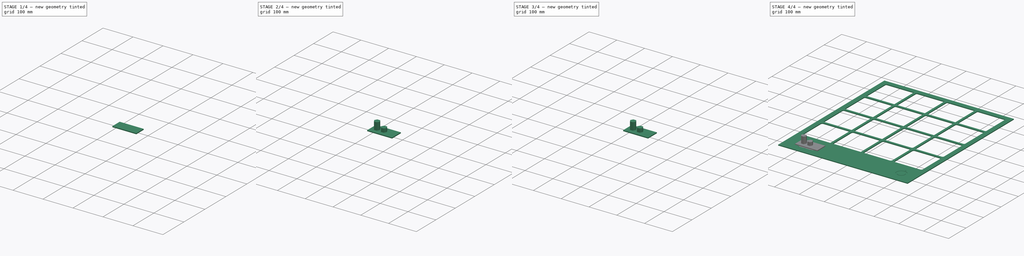
[diagram: build sequence overview — one tinted view per stage of 4, left to right]
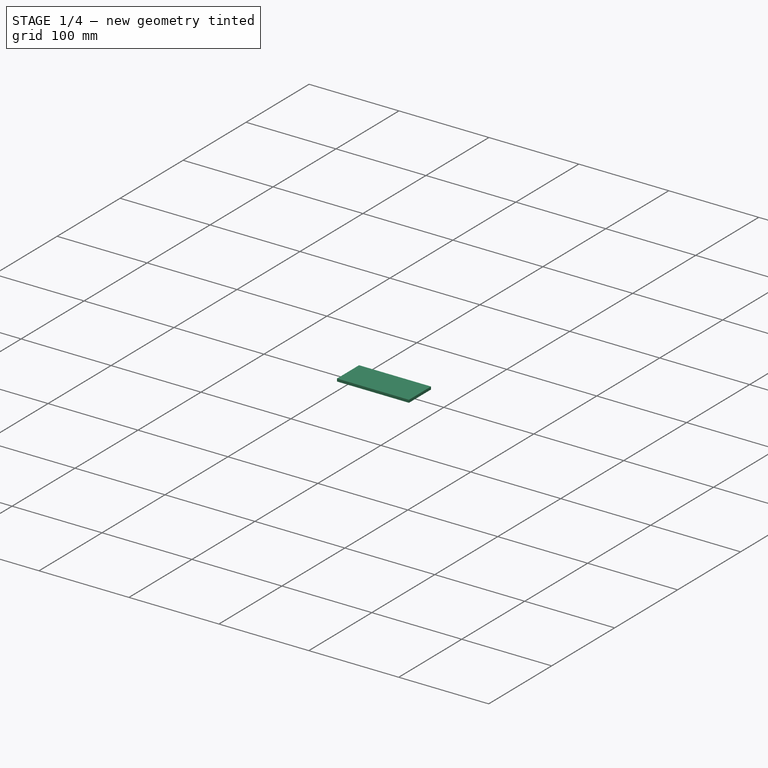
[diagram: stage 1 of 4 — iso view after this stage's code; geometry added in this stage tinted green]
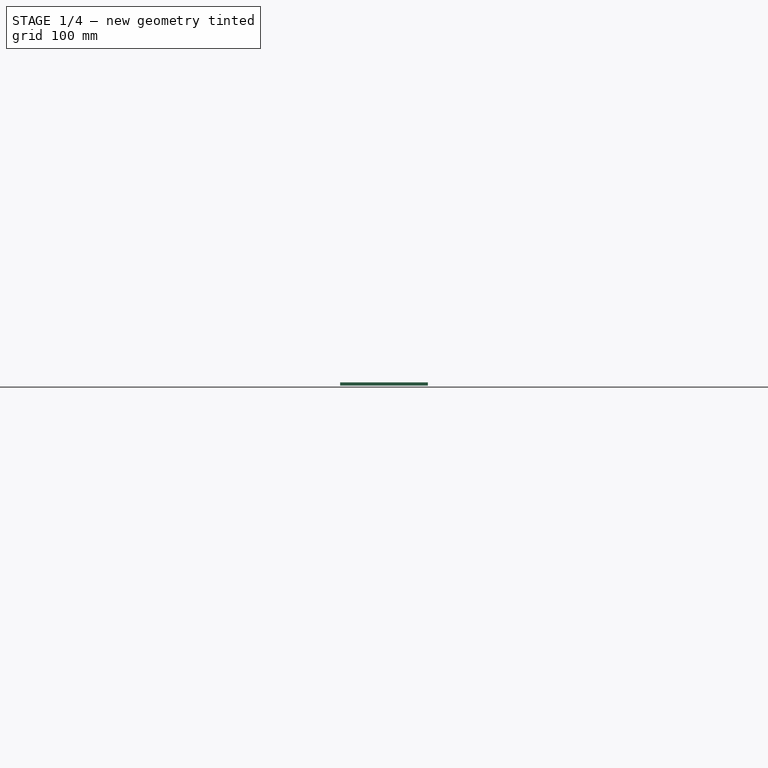
[diagram: stage 1 of 4 — front view after this stage's code; geometry added in this stage tinted green]
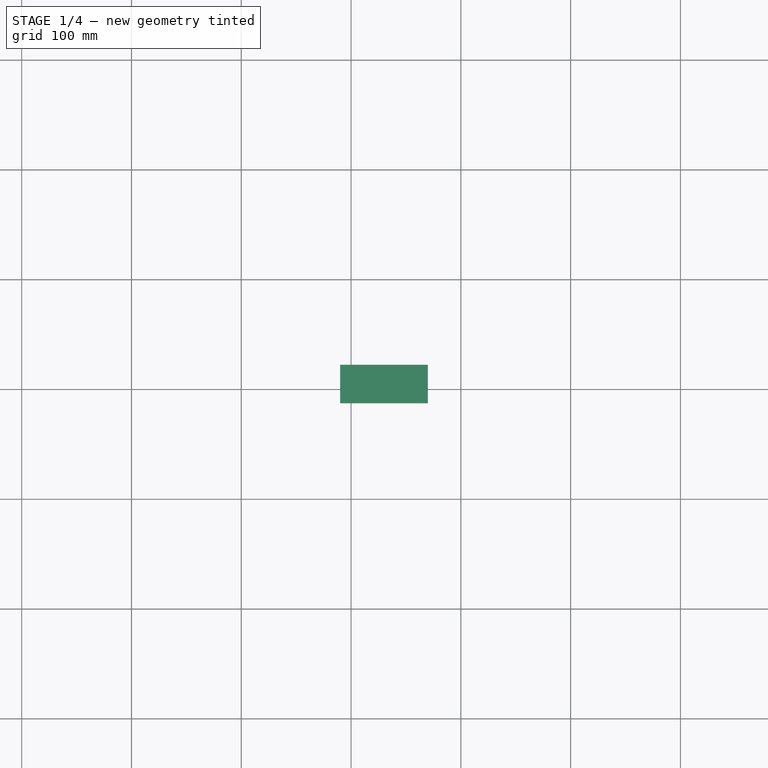
[diagram: stage 1 of 4 — top view after this stage's code; geometry added in this stage tinted green]
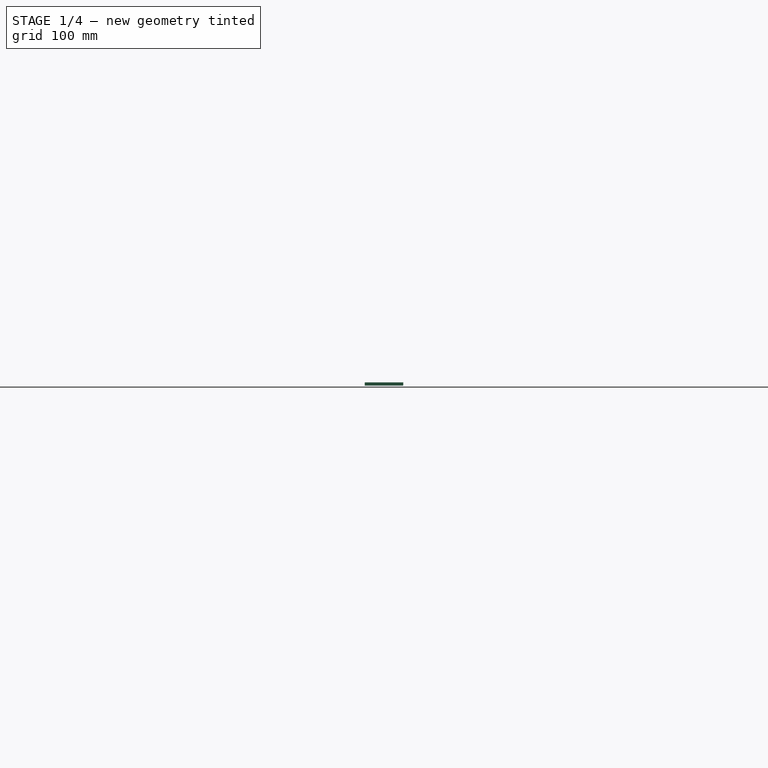
[diagram: stage 1 of 4 — right view after this stage's code; geometry added in this stage tinted green]
FCSTD DOCUMENT  (FreeCAD 0.17R13541 (Git))
Label: legenda 3d
License: All rights reserved
LicenseURL: http://en.wikipedia.org/wiki/All_rights_reserved
objects: Drawing::FeatureViewPart×9, Sketcher::SketchObject×5, PartDesign::FeatureBase×4, PartDesign::Body×4, Part::Extrusion×3, Part::Feature×3, Part::MultiFuse×2, Drawing::FeaturePage×2, Part::FeaturePython×1, PartDesign::Pad×1, Part::Cut×1
note: 25 computed .brp shape members not serialized (recipe doc carries the construction recipe); baked Part::Feature solids carry a one-line shape summary decoded from their .brp

FEATURE [Part::FeaturePython] Clone  label="Body001"  # WARN: FeaturePython — macro-defined, semantics opaque (R4)
  AttacherType = Attacher::AttachEngine3D
  Fuse = false
  Scale = (1,1,1)
FEATURE [PartDesign::FeatureBase] BaseFeature
  BaseFeature = -> Clone
FEATURE [Sketcher::SketchObject] Sketch
  ExternalGeometry = -> [BaseFeature]
  MapMode = 5
  Support = -> [BaseFeature]
  sketch-geometry (4):
    g0: LineSegment StartX=-130 StartY=-277.5 StartZ=0 EndX=-210 EndY=-277.5 EndZ=0
    g1: LineSegment StartX=-210 StartY=-277.5 StartZ=0 EndX=-210 EndY=-312.5 EndZ=0
    g2: LineSegment StartX=-210 StartY=-312.5 StartZ=0 EndX=-130 EndY=-312.5 EndZ=0
    g3: LineSegment StartX=-130 StartY=-312.5 StartZ=0 EndX=-130 EndY=-277.5 EndZ=0
  constraints (10):
    c: Coincident(g0,g1)
    c: Coincident(g1,g2)
    c: Coincident(g2,g3)
    c: Coincident(g3,g0)
    c: Horizontal(g0)
    c: Horizontal(g2)
    c: Vertical(g1)
    c: Vertical(g3)
    c: Coincident(g0,g-3)
    c: Coincident(g1,g-4)
FEATURE [PartDesign::Body] Body
  BaseFeature = -> Clone
  Group = -> [BaseFeature,Sketch]
  Origin = -> Origin
  Tip = -> BaseFeature
FEATURE [Part::Extrusion] Extrude
  Base = -> Sketch
  Dir = (0,0,-1)
  DirMode = 0
  FaceMakerClass = Part::FaceMakerBullseye
  LengthFwd = 3
  LengthRev = 0
  Solid = true
  Symmetric = false
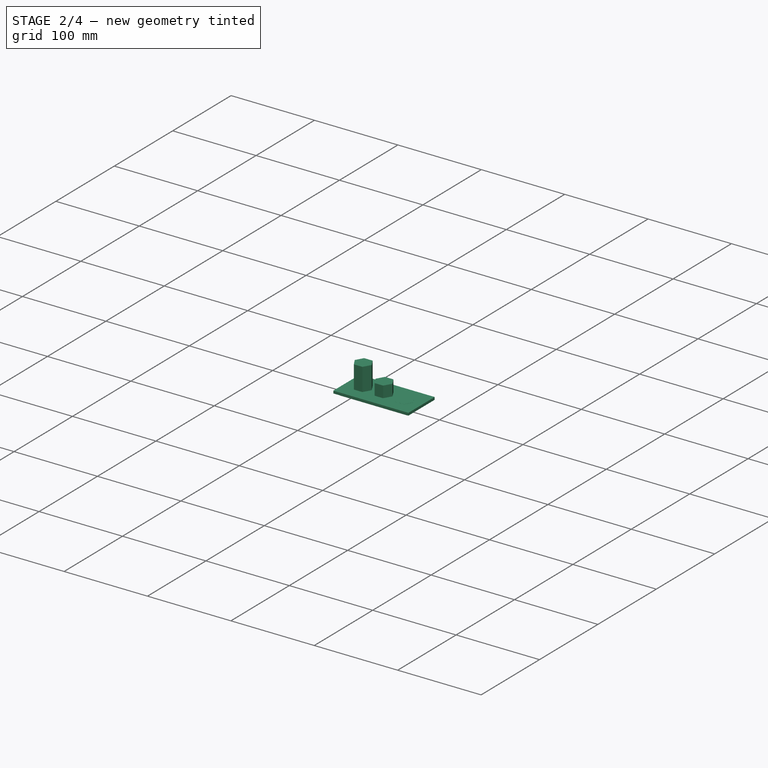
[diagram: stage 2 of 4 — iso view after this stage's code; geometry added in this stage tinted green]
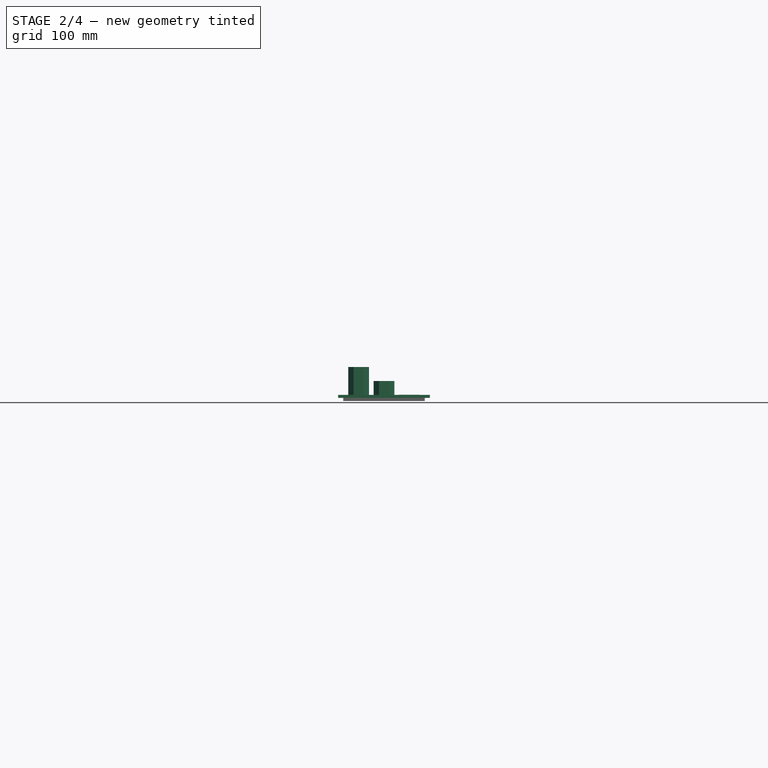
[diagram: stage 2 of 4 — front view after this stage's code; geometry added in this stage tinted green]
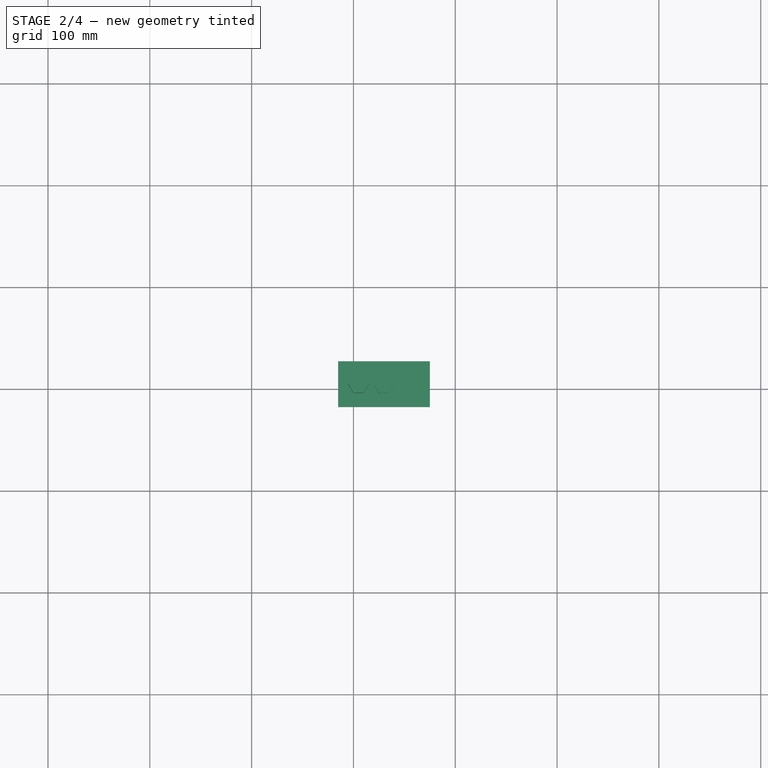
[diagram: stage 2 of 4 — top view after this stage's code; geometry added in this stage tinted green]
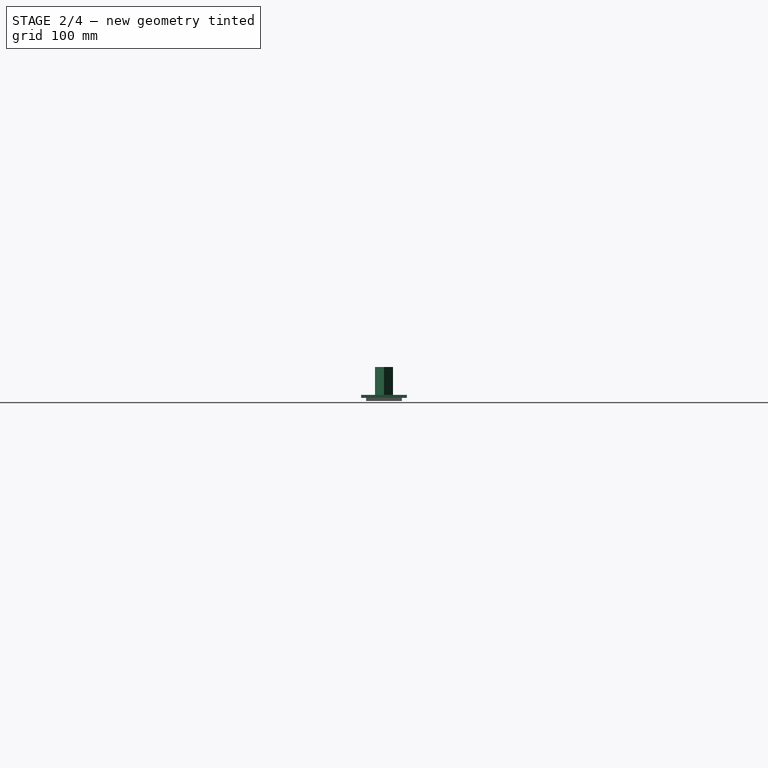
[diagram: stage 2 of 4 — right view after this stage's code; geometry added in this stage tinted green]
FEATURE [PartDesign::FeatureBase] BaseFeature001
  BaseFeature = -> Extrude
FEATURE [Sketcher::SketchObject] Sketch001
  ExternalGeometry = -> [BaseFeature001]
  MapMode = 5
  Support = -> [BaseFeature001]
  sketch-geometry (4):
    g0: LineSegment StartX=-215 StartY=-272.5 StartZ=0 EndX=-125 EndY=-272.5 EndZ=0
    g1: LineSegment StartX=-125 StartY=-272.5 StartZ=0 EndX=-125 EndY=-317.5 EndZ=0
    g2: LineSegment StartX=-125 StartY=-317.5 StartZ=0 EndX=-215 EndY=-317.5 EndZ=0
    g3: LineSegment StartX=-215 StartY=-317.5 StartZ=0 EndX=-215 EndY=-272.5 EndZ=0
  constraints (12):
    c: Coincident(g0,g1)
    c: Coincident(g1,g2)
    c: Coincident(g2,g3)
    c: Coincident(g3,g0)
    c: Horizontal(g0)
    c: Horizontal(g2)
    c: Vertical(g1)
    c: Vertical(g3)
    c: DistanceY(g-3,g0) = 5
    c: DistanceX(g0,g-3) = 5
    c: DistanceX(g-4,g0) = 5
    c: DistanceY(g1,g-4) = 5
FEATURE [PartDesign::Pad] Pad
  BaseFeature = -> BaseFeature001
  Length = 3
  Length2 = 100
  Profile = -> Sketch001
  Type = 0
FEATURE [Part::Feature] buffer_negative_005_buffer_negative_000001001_solid  label="buffer_negative_005_buffer_negative_000002 (Solid)"
  Placement = pos=(-126.218,-250.329,-41.5319) rot=(0,0,-1;1.5708rad)
  shape: bbox 20.37 x 17.64 x 27.31 mm, 14 faces (baked)
FEATURE [Part::Feature] buffer_negative_001_buffer_negative_004001001_solid  label="buffer_negative_001_buffer_negative_004002 (Solid)"
  Placement = pos=(-137.95,-250.329,-41.5319) rot=(0,0,-1;1.5708rad)
  shape: bbox 20.37 x 17.64 x 13.65 mm, 8 faces (baked)
FEATURE [Part::Feature] buffer_negative_000_buffer_negative_003001001_solid  label="buffer_negative_000_buffer_negative_003002 (Solid)"
  Placement = pos=(-145.615,-250.329,-41.5319) rot=(0,0,-1;1.5708rad)
  shape: bbox 20.37 x 17.64 x 0.07 mm, 8 faces (baked)
FEATURE [Sketcher::SketchObject] Sketch002
  ExternalGeometry = -> [Pad]
  MapMode = 5
  Placement = pos=(0,0,3) rot=(0,0,1;0rad)
  Support = -> [Pad]
  sketch-geometry (11):
    g0: LineSegment StartX=-200 StartY=-303.82 StartZ=0 EndX=-189.81 EndY=-303.82 EndZ=0
    g1: LineSegment StartX=-175.095 StartY=-303.82 StartZ=0 EndX=-164.905 EndY=-303.82 EndZ=0
    g2: LineSegment StartX=-150.19 StartY=-303.82 StartZ=0 EndX=-140 EndY=-303.82 EndZ=0
    g3: LineSegment [constr] StartX=-189.81 StartY=-303.82 StartZ=0 EndX=-175.095 EndY=-303.82 EndZ=0
    g4: LineSegment [constr] StartX=-164.905 StartY=-303.82 StartZ=0 EndX=-150.19 EndY=-303.82 EndZ=0
    g5: LineSegment [constr] StartX=-200 StartY=-303.82 StartZ=0 EndX=-200 EndY=-286.18 EndZ=0
    g6: LineSegment [constr] StartX=-140 StartY=-303.82 StartZ=0 EndX=-140 EndY=-286.18 EndZ=0
    g7: LineSegment [constr] StartX=-215 StartY=-272.5 StartZ=0 EndX=-200 EndY=-286.18 EndZ=0
    g8: LineSegment [constr] StartX=-215 StartY=-317.5 StartZ=0 EndX=-200 EndY=-303.82 EndZ=0
    g9: LineSegment [constr] StartX=-125 StartY=-272.5 StartZ=0 EndX=-140 EndY=-286.18 EndZ=0
    g10: LineSegment [constr] StartX=-140 StartY=-303.82 StartZ=0 EndX=-125 EndY=-317.5 EndZ=0
  constraints (31):
    c: Horizontal(g0)
    c: Horizontal(g1)
    c: Horizontal(g2)
    c: Equal(g0,g1)
    c: Equal(g1,g2)
    c: DistanceX(g0,g0) = 10.19
    c: Coincident(g3,g0)
    c: Coincident(g3,g1)
    c: Horizontal(g3)
    c: Coincident(g4,g1)
    c: Coincident(g4,g2)
    c: Horizontal(g4)
    c: Equal(g3,g4)
    c: Coincident(g5,g0)
    c: Vertical(g5)
    c: DistanceY(g5,g5) = 17.64
    c: Coincident(g6,g2)
    c: Vertical(g6)
    c: Equal(g5,g6)
    c: Coincident(g-3,g7)
    c: Coincident(g7,g5)
    c: Coincident(g-4,g8)
    c: Coincident(g8,g0)
    c: Coincident(g-3,g9)
    c: Coincident(g9,g6)
    c: Coincident(g2,g10)
    c: Coincident(g10,g-4)
    c: DistanceX(g0,g2) = 60
    c: Equal(g7,g8)
    c: Equal(g8,g10)
    c: Equal(g10,g9)
FEATURE [PartDesign::Body] Body001  label="Body002"
  BaseFeature = -> Extrude
  Group = -> [BaseFeature001,Sketch001,Pad,Sketch002]
  Origin = -> Origin001
  Tip = -> Pad
FEATURE [Part::MultiFuse] Fusion
  Shapes = -> [Body001,buffer_negative_005_buffer_negative_000001001_solid,buffer_negative_001_buffer_negative_004001001_solid,buffer_negative_000_buffer_negative_003001001_solid]
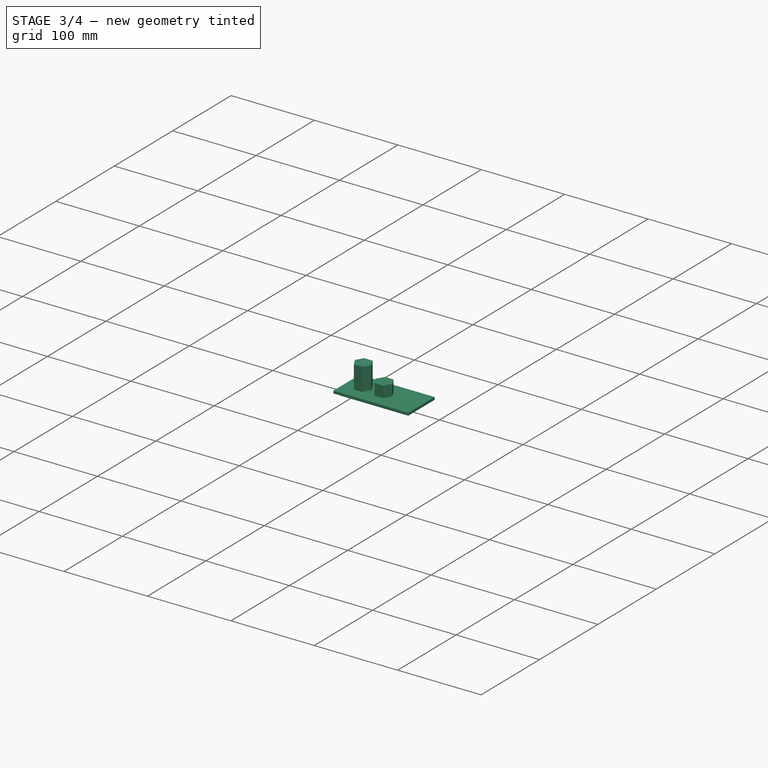
[diagram: stage 3 of 4 — iso view after this stage's code; geometry added in this stage tinted green]
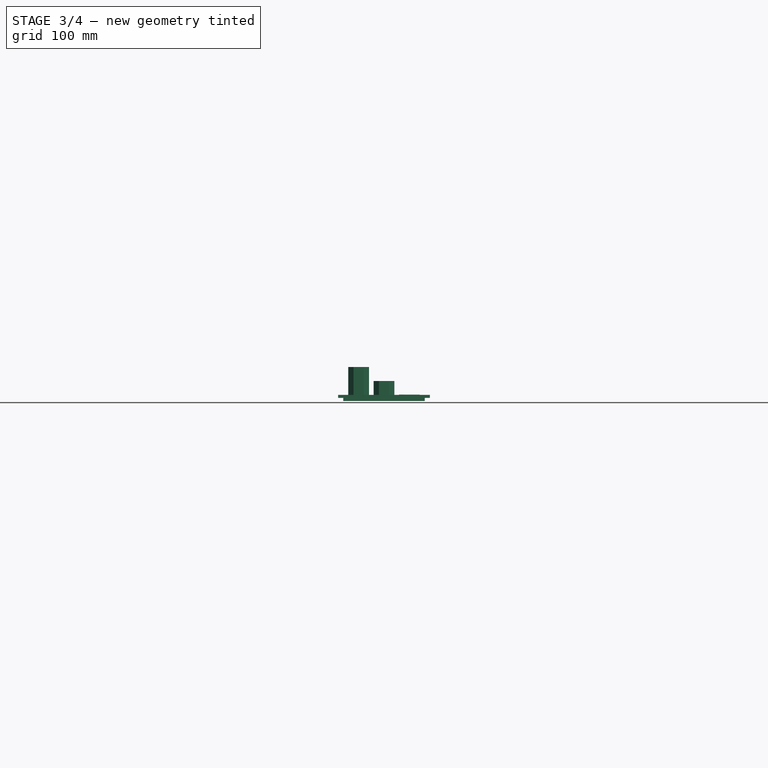
[diagram: stage 3 of 4 — front view after this stage's code; geometry added in this stage tinted green]
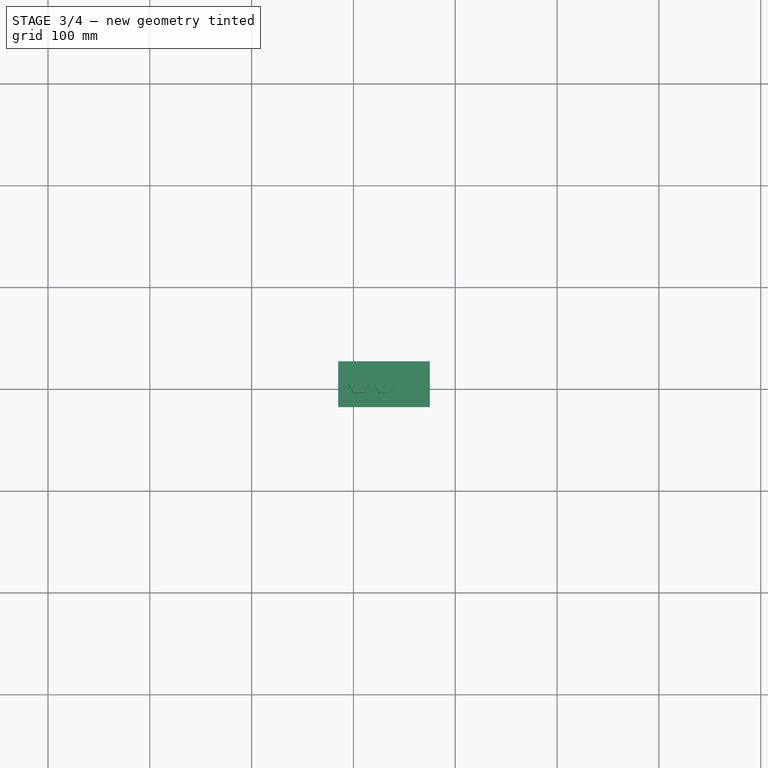
[diagram: stage 3 of 4 — top view after this stage's code; geometry added in this stage tinted green]
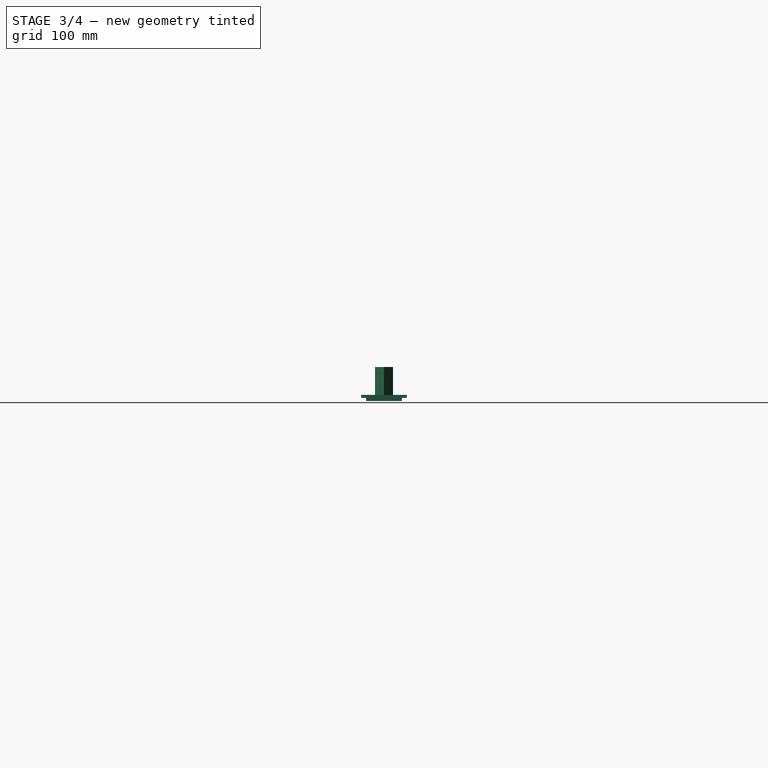
[diagram: stage 3 of 4 — right view after this stage's code; geometry added in this stage tinted green]
FEATURE [Drawing::FeatureViewPart] Ortho  label="Ortho_0_0"
  Direction = (1,0,0)
  HiddenWidth = 0.15
  LineWidth = 0.35
  Rotation = -90
  ShowHiddenLines = false
  ShowSmoothLines = false
  Source = -> Cut
  Tolerance = 0.05
  ViewResult = <g id="Ortho_0_0"\n   transform="rotate(-90,465.5,964) translate(465.5,964) scale(1,1)"\n  >\n<g   fill="none"\n   stroke="rgb(0, 0, 0)"\n   stroke-linecap="butt"\n   stroke-linejoin="miter"\n   stroke-width="0.350000"\n   transform="scale(1,-1)"\n  >\n<path id= "1" d=" M 0 -260 L 0 350 " />\n<path id= "2" d=" M 0 -260 L -3 -260 " />\n<path id= "3" d=" M 0 350 L -3 350 " />\n<path id= "4" d=" M -3 -260 L -3 350 " />\n</g>\n</g>
  Visible = false
  X = 465.5
  Y = 964
FEATURE [Drawing::FeatureViewPart] Ortho001  label="Ortho_0_1"
  Direction = (0,0,1)
  HiddenWidth = 0.15
  LineWidth = 0.35
  Rotation = 90
  ShowHiddenLines = false
  ShowSmoothLines = false
  Source = -> Cut
  Tolerance = 0.05
  ViewResult = <blob: 6287 chars omitted>
  Visible = false
  X = 465.5
  Y = 482
FEATURE [Drawing::FeaturePage] Page001
  EditableTexts = AUTHOR NAME | DRAWING TITLE | FreeCAD DRAWING | A0 | X / Y | SCALE | PN | DN | DD/MM/YYYY | REV A
  Template = <path>
FEATURE [Drawing::FeatureViewPart] Ortho002  label="Ortho_0_002"
  Direction = (1,0,0)
  HiddenWidth = 0.15
  LineWidth = 0.35
  Rotation = -90
  ShowHiddenLines = false
  ShowSmoothLines = false
  Source = -> Fusion
  Tolerance = 0.05
  ViewResult = <g id="Ortho_0_002"\n   transform="rotate(-90,715.5,879.667) translate(715.5,879.667) scale(1,1)"\n  >\n<g   fill="none"\n   stroke="rgb(0, 0, 0)"\n   stroke-linecap="butt"\n   stroke-linejoin="miter"\n   stroke-width="0.350000"\n   transform="scale(1,-1)"\n  >\n<path id= "1" d=" M 0 272.5 L 3 272.5 " />\n<path id= "2" d=" M 0 317.5 L 3 317.5 " />\n<path id= "3" d=" M 0 272.5 L 0 317.5 " />\n<path id= "4" d=" M 3 272.5 L 3 317.5 " />\n<path id= "5" d=" M 0 312.5 L -3 312.5 " />\n<path id= "6" d=" M 0 277.5 L -3 277.5 " />\n<path id= "7" d=" M -3 312.5 L -3 277.5 " />\n<path id= "8" d=" M 16.653 286.176 L 30.306 286.176 " />\n<path id= "9" d=" M 30.306 294.998 L 30.306 286.176 " />\n<path id= "10" d=" M 16.653 294.998 L 30.306 294.998 " />\n<path id= "11" d=" M 30.306 303.82 L 30.306 294.998 " />\n<path id= "12" d=" M 16.653 303.82 L 30.306 303.82 " />\n<path id= "13" d=" M 3 286.176 L 3 286.176 " />\n<path id= "14" d=" M 3.07 286.176 L 16.653 286.176 " />\n<path id= "15" d=" M 16.653 294.998 L 16.653 286.176 " />\n<path id= "16" d=" M 3 294.998 L 3 294.998 " />\n<path id= "17" d=" M 3.07 294.998 L 16.653 294.998 " />\n<path id= "18" d=" M 16.653 303.82 L 16.653 294.998 " />\n<path id= "19" d=" M 3 303.82 L 3 303.82 " />\n<path id= "20" d=" M 3.07 303.82 L 16.653 303.82 " />\n<path id= "21" d=" M 3.07 294.998 L 3.07 286.176 " />\n<path id= "22" d=" M 3.07 303.82 L 3.07 294.998 " />\n<path id= "23" d=" M 3 303.82 L 3.07 303.82 " />\n<path id= "24" d=" M 3 294.998 L 3 286.176 " />\n<path id= "25" d=" M 3 303.82 L 3 294.998 " />\n<path id= "26" d=" M 3 294.998 L 3.07 294.998 " />\n<path id= "27" d=" M 3 286.176 L 3.07 286.176 " />\n</g>\n</g>
  Visible = false
  X = 715.5
  Y = 879.667
FEATURE [Drawing::FeatureViewPart] Ortho003  label="Ortho_0_003"
  Direction = (0,0,1)
  HiddenWidth = 0.15
  LineWidth = 0.35
  Rotation = 90
  ShowHiddenLines = false
  ShowSmoothLines = false
  Source = -> Fusion
  Tolerance = 0.05
  ViewResult = <g id="Ortho_0_003"\n   transform="rotate(90,715.5,578.027) translate(715.5,578.027) scale(1,1)"\n  >\n<g   fill="none"\n   stroke="rgb(0, 0, 0)"\n   stroke-linecap="butt"\n   stroke-linejoin="miter"\n   stroke-width="0.350000"\n   transform="scale(1,-1)"\n  >\n<path id= "1" d=" M -215 -272.5 L -125 -272.5 " />\n<path id= "2" d=" M -215 -317.5 L -215 -272.5 " />\n<path id= "3" d=" M -125 -272.5 L -125 -317.5 " />\n<path id= "4" d=" M -125 -317.5 L -215 -317.5 " />\n<path id= "5" d=" M -201.015 -286.176 L -189.81 -286.176 " />\n<path id= "6" d=" M -199.997 -286.176 L -205.09 -294.998 " />\n<path id= "7" d=" M -189.81 -286.176 L -199.997 -286.176 " />\n<path id= "8" d=" M -184.717 -294.998 L -189.81 -286.176 " />\n<path id= "9" d=" M -189.81 -303.82 L -184.717 -294.998 " />\n<path id= "10" d=" M -199.997 -303.82 L -189.81 -303.82 " />\n<path id= "11" d=" M -205.09 -294.998 L -199.997 -303.82 " />\n<path id= "12" d=" M -175.092 -286.176 L -180.185 -294.998 " />\n<path id= "13" d=" M -164.905 -286.176 L -175.092 -286.176 " />\n<path id= "14" d=" M -159.812 -294.998 L -164.905 -286.176 " />\n<path id= "15" d=" M -164.905 -303.82 L -159.812 -294.998 " />\n<path id= "16" d=" M -175.092 -303.82 L -164.905 -303.82 " />\n<path id= "17" d=" M -180.185 -294.998 L -175.092 -303.82 " />\n<path id= "18" d=" M -205.09 -294.998 L -184.717 -294.998 " />\n<path id= "19" d=" M -199.997 -286.176 L -184.717 -294.998 " />\n<path id= "20" d=" M -199.997 -303.82 L -184.717 -294.998 " />\n<path id= "21" d=" M -134.907 -294.998 L -140 -286.176 " />\n<path id= "22" d=" M -140 -286.176 L -150.187 -286.176 " />\n<path id= "23" d=" M -150.187 -286.176 L -155.28 -294.998 " />\n<path id= "24" d=" M -155.28 -294.998 L -150.187 -303.82 " />\n<path id= "25" d=" M -150.187 -303.82 L -140 -303.82 " />\n<path id= "26" d=" M -140 -303.82 L -134.907 -294.998 " />\n</g>\n</g>
  Visible = false
  X = 715.5
  Y = 578.027
FEATURE [Drawing::FeatureViewPart] Ortho004  label="Ortho_1_1"
  Direction = (0.57735,0.57735,0.57735)
  HiddenWidth = 0.15
  LineWidth = 0.35
  Rotation = 120
  ShowHiddenLines = false
  ShowSmoothLines = false
  Source = -> Fusion
  Tolerance = 0.05
  ViewResult = <blob: 3503 chars omitted>
  Visible = false
  X = 752.888
  Y = 609.01
FEATURE [Drawing::FeatureViewPart] Ortho005  label="Ortho_-1_1"
  Direction = (0.57735,-0.57735,0.57735)
  HiddenWidth = 0.15
  LineWidth = 0.35
  Rotation = 60
  ShowHiddenLines = false
  ShowSmoothLines = false
  Source = -> Fusion
  Tolerance = 0.05
  ViewResult = <blob: 3502 chars omitted>
  Visible = false
  X = 505.305
  Y = 368.144
FEATURE [Drawing::FeatureViewPart] Ortho006  label="Ortho_0_004"
  Direction = (1,0,0)
  HiddenWidth = 0.15
  LineWidth = 0.35
  Rotation = -90
  ShowHiddenLines = false
  ShowSmoothLines = false
  Source = -> Body002
  Tolerance = 0.05
  ViewResult = <g id="Ortho_0_004"\n   transform="rotate(-90,715.5,336.639) translate(715.5,336.639) scale(1,1)"\n  >\n<g   fill="none"\n   stroke="rgb(0, 0, 0)"\n   stroke-linecap="butt"\n   stroke-linejoin="miter"\n   stroke-width="0.350000"\n   transform="scale(1,-1)"\n  >\n<path id= "1" d=" M 0 272.5 L 3 272.5 " />\n<path id= "2" d=" M 0 317.5 L 3 317.5 " />\n<path id= "3" d=" M 0 272.5 L 0 317.5 " />\n<path id= "4" d=" M 3 272.5 L 3 317.5 " />\n<path id= "5" d=" M 0 312.5 L -3 312.5 " />\n<path id= "6" d=" M 0 277.5 L -3 277.5 " />\n<path id= "7" d=" M -3 312.5 L -3 277.5 " />\n<path id= "8" d=" M 16.653 286.176 L 30.306 286.176 " />\n<path id= "9" d=" M 30.306 294.998 L 30.306 286.176 " />\n<path id= "10" d=" M 16.653 294.998 L 30.306 294.998 " />\n<path id= "11" d=" M 30.306 303.82 L 30.306 294.998 " />\n<path id= "12" d=" M 16.653 303.82 L 30.306 303.82 " />\n<path id= "13" d=" M 3 286.176 L 3 286.176 " />\n<path id= "14" d=" M 3.07 286.176 L 16.653 286.176 " />\n<path id= "15" d=" M 16.653 294.998 L 16.653 286.176 " />\n<path id= "16" d=" M 3 294.998 L 3 294.998 " />\n<path id= "17" d=" M 3.07 294.998 L 16.653 294.998 " />\n<path id= "18" d=" M 16.653 303.82 L 16.653 294.998 " />\n<path id= "19" d=" M 3 303.82 L 3 303.82 " />\n<path id= "20" d=" M 3.07 303.82 L 16.653 303.82 " />\n<path id= "21" d=" M 3.07 294.998 L 3.07 286.176 " />\n<path id= "22" d=" M 3.07 303.82 L 3.07 294.998 " />\n<path id= "23" d=" M 3 303.82 L 3.07 303.82 " />\n<path id= "24" d=" M 3 294.998 L 3 286.176 " />\n<path id= "25" d=" M 3 303.82 L 3 294.998 " />\n<path id= "26" d=" M 3 294.998 L 3.07 294.998 " />\n<path id= "27" d=" M 3 286.176 L 3.07 286.176 " />\n</g>\n</g>
  Visible = false
  X = 715.5
  Y = 336.639
FEATURE [Drawing::FeatureViewPart] Ortho007  label="Ortho_-1_-1"
  Direction = (0.57735,-0.57735,-0.57735)
  HiddenWidth = 0.15
  LineWidth = 0.35
  Rotation = 120
  ShowHiddenLines = false
  ShowSmoothLines = false
  Source = -> Body002
  Tolerance = 0.05
  ViewResult = <g id="Ortho_-1_-1"\n   transform="rotate(120,505.305,843.151) translate(505.305,843.151) scale(1,1)"\n  >\n<g   fill="none"\n   stroke="rgb(0, 0, 0)"\n   stroke-linecap="butt"\n   stroke-linejoin="miter"\n   stroke-width="0.350000"\n   transform="scale(1,-1)"\n  >\n<path id= "1" d=" M 88.3883 -273.526 L 86.267 -274.751 " />\n<path id= "2" d=" M 152.028 -310.269 L 88.3883 -273.526 " />\n<path id= "3" d=" M 152.028 -347.011 L 149.907 -348.236 " />\n<path id= "4" d=" M 152.028 -347.011 L 152.028 -310.269 " />\n<path id= "5" d=" M 88.3883 -310.269 L 86.267 -311.493 " />\n<path id= "6" d=" M 88.3883 -273.526 L 88.3883 -310.269 " />\n<path id= "7" d=" M 86.267 -274.751 L 86.267 -311.493 " />\n<path id= "8" d=" M 88.3883 -310.269 L 152.028 -347.011 " />\n<path id= "9" d=" M 91.9239 -308.227 L 91.9239 -279.65 " />\n<path id= "10" d=" M 148.492 -340.887 L 91.9239 -308.227 " />\n<path id= "11" d=" M 86.267 -311.493 L 149.907 -348.236 " />\n<path id= "12" d=" M 91.9239 -308.227 L 94.0452 -307.003 " />\n<path id= "13" d=" M 91.9239 -279.65 L 94.0452 -278.425 " />\n<path id= "14" d=" M 94.0452 -307.003 L 94.0452 -278.425 " />\n<path id= "15" d=" M 148.492 -340.887 L 150.614 -339.663 " />\n<path id= "16" d=" M 150.614 -339.663 L 94.0452 -307.003 " />\n<path id= "17" d=" M 150.614 -311.085 L 150.614 -339.663 " />\n<path id= "18" d=" M 94.0452 -278.425 L 150.614 -311.085 " />\n<path id= "19" d=" M 109.185 -328.647 L 111.146 -325.857 " />\n<path id= "20" d=" M 112.582 -326.686 L 109.185 -328.647 " />\n<path id= "21" d=" M 112.786 -337.93 L 109.185 -328.647 " />\n<path id= "22" d=" M 122.421 -332.367 L 112.786 -337.93 " />\n<path id= "23" d=" M 129.625 -336.526 L 119.99 -342.089 " />\n<path id= "24" d=" M 119.99 -342.089 L 112.786 -337.93 " />\n</g>\n</g>
  Visible = false
  X = 505.305
  Y = 843.151
FEATURE [Drawing::FeatureViewPart] Ortho008  label="Ortho_1_-1"
  Direction = (0.57735,0.57735,-0.57735)
  HiddenWidth = 0.15
  LineWidth = 0.35
  Rotation = 60
  ShowHiddenLines = false
  ShowSmoothLines = false
  Source = -> Body002
  Tolerance = 0.05
  ViewResult = <g id="Ortho_1_-1"\n   transform="rotate(60,752.888,602.285) translate(752.888,602.285) scale(1,1)"\n  >\n<g   fill="none"\n   stroke="rgb(0, 0, 0)"\n   stroke-linecap="butt"\n   stroke-linejoin="miter"\n   stroke-width="0.350000"\n   transform="scale(1,-1)"\n  >\n<path id= "1" d=" M 152.028 -134.722 L 149.907 -133.497 " />\n<path id= "2" d=" M 88.3883 -171.464 L 86.267 -170.24 " />\n<path id= "3" d=" M 152.028 -134.722 L 88.3883 -171.464 " />\n<path id= "4" d=" M 149.907 -133.497 L 86.267 -170.24 " />\n<path id= "5" d=" M 152.028 -171.464 L 152.028 -134.722 " />\n<path id= "6" d=" M 88.3883 -208.207 L 86.267 -206.982 " />\n<path id= "7" d=" M 88.3883 -171.464 L 88.3883 -208.207 " />\n<path id= "8" d=" M 86.267 -170.24 L 86.267 -206.982 " />\n<path id= "9" d=" M 88.3883 -208.207 L 152.028 -171.464 " />\n<path id= "10" d=" M 91.9239 -202.083 L 91.9239 -173.506 " />\n<path id= "11" d=" M 91.9239 -173.506 L 148.492 -140.846 " />\n<path id= "12" d=" M 91.9239 -202.083 L 94.0452 -203.308 " />\n<path id= "13" d=" M 91.9239 -173.506 L 94.0452 -174.73 " />\n<path id= "14" d=" M 94.0452 -203.308 L 94.0452 -174.73 " />\n<path id= "15" d=" M 150.614 -170.648 L 94.0452 -203.308 " />\n<path id= "16" d=" M 148.492 -140.846 L 150.614 -142.07 " />\n<path id= "17" d=" M 150.614 -142.07 L 150.614 -170.648 " />\n<path id= "18" d=" M 94.0452 -174.73 L 150.614 -142.07 " />\n<path id= "19" d=" M 129.627 -145.205 L 119.99 -139.641 " />\n<path id= "20" d=" M 122.424 -149.364 L 112.786 -143.8 " />\n<path id= "21" d=" M 112.786 -143.8 L 119.99 -139.641 " />\n<path id= "22" d=" M 109.185 -153.082 L 112.786 -143.8 " />\n<path id= "23" d=" M 112.585 -155.045 L 109.185 -153.082 " />\n<path id= "24" d=" M 111.148 -155.875 L 109.185 -153.082 " />\n</g>\n</g>
  Visible = false
  X = 752.888
  Y = 602.285
FEATURE [Drawing::FeaturePage] Page
  Group = -> [Ortho,Ortho001,Ortho002,Ortho003,Ortho004,Ortho005,Ortho006,Ortho007,Ortho008]
  Template = <path>
FEATURE [PartDesign::FeatureBase] BaseFeature003
  BaseFeature = -> Fusion
FEATURE [Sketcher::SketchObject] Sketch004
  ExternalGeometry = -> [BaseFeature003]
  MapMode = 5
  Placement = pos=(0,0,3.07) rot=(0,0,1;0rad)
  Support = -> [BaseFeature003]
  sketch-geometry (7):
    g0: LineSegment StartX=-140 StartY=-286.176 StartZ=0 EndX=-150.187 EndY=-286.176 EndZ=0
    g1: LineSegment StartX=-150.187 StartY=-286.176 StartZ=0 EndX=-155.28 EndY=-294.998 EndZ=0
    g2: LineSegment StartX=-155.28 StartY=-294.998 StartZ=0 EndX=-150.187 EndY=-303.82 EndZ=0
    g3: LineSegment StartX=-150.187 StartY=-303.82 StartZ=0 EndX=-140 EndY=-303.82 EndZ=0
    g4: LineSegment StartX=-140 StartY=-303.82 StartZ=0 EndX=-134.907 EndY=-294.998 EndZ=0
    g5: LineSegment StartX=-134.907 StartY=-294.998 StartZ=0 EndX=-140 EndY=-286.176 EndZ=0
    g6: Circle [constr] CenterX=-145.093 CenterY=-294.998 CenterZ=0 NormalX=0 NormalY=0 NormalZ=1 AngleXU=0 Radius=10.1868
  constraints (15):
    c: Coincident(g0,g1)
    c: Coincident(g1,g2)
    c: Coincident(g2,g3)
    c: Coincident(g3,g4)
    c: Coincident(g4,g5)
    c: Coincident(g5,g0)
    c: Equal(g0, g1-g5) x5
    c: PointOnObject(g0,g6)
    c: PointOnObject(g1,g6)
    c: PointOnObject(g2,g6)
    c: PointOnObject(g3,g6)
    c: PointOnObject(g4,g6)
    c: PointOnObject(g5,g6)
    c: Coincident(g-3,g0)
    c: Coincident(g-4,g2)
FEATURE [PartDesign::Body] Body003  label="Body004"
  BaseFeature = -> Fusion
  Group = -> [BaseFeature003,Sketch004]
  Origin = -> Origin003
  Tip = -> BaseFeature003
FEATURE [Part::Extrusion] Extrude002
  Base = -> Sketch004
  Dir = (0,0,1)
  DirMode = 2
  FaceMakerClass = Part::FaceMakerBullseye
  LengthFwd = 0.2
  LengthRev = 0
  Placement = pos=(0,0,-0.1) rot=(0,0,1;0rad)
  Solid = true
  Symmetric = false
FEATURE [Part::MultiFuse] Fusion001
  Shapes = -> [Body003,Extrude002]
note: 2 file-system paths scrubbed to <path> (originals preserved in the JSON sidecar)
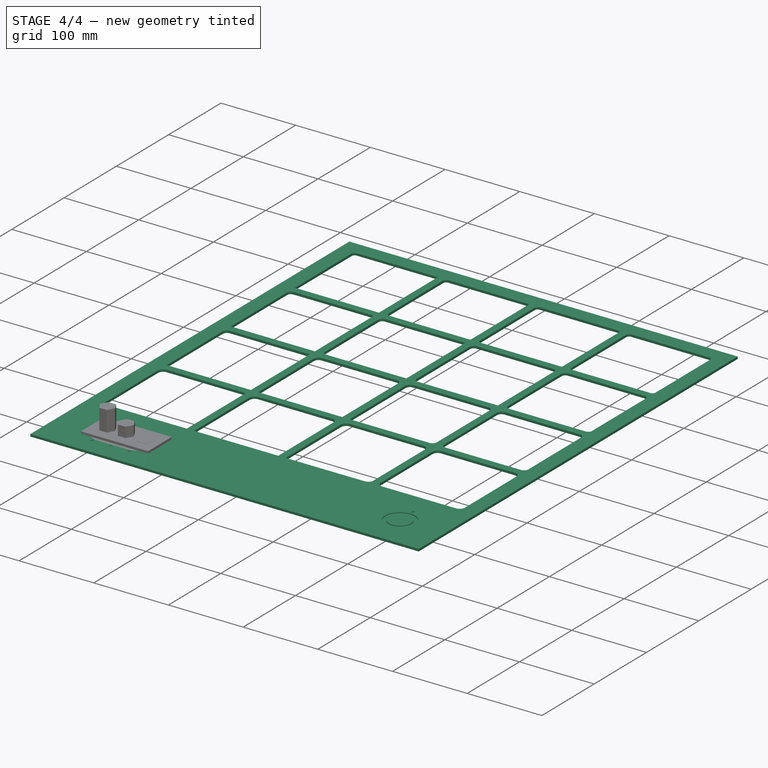
[diagram: stage 4 of 4 — iso view after this stage's code; geometry added in this stage tinted green]
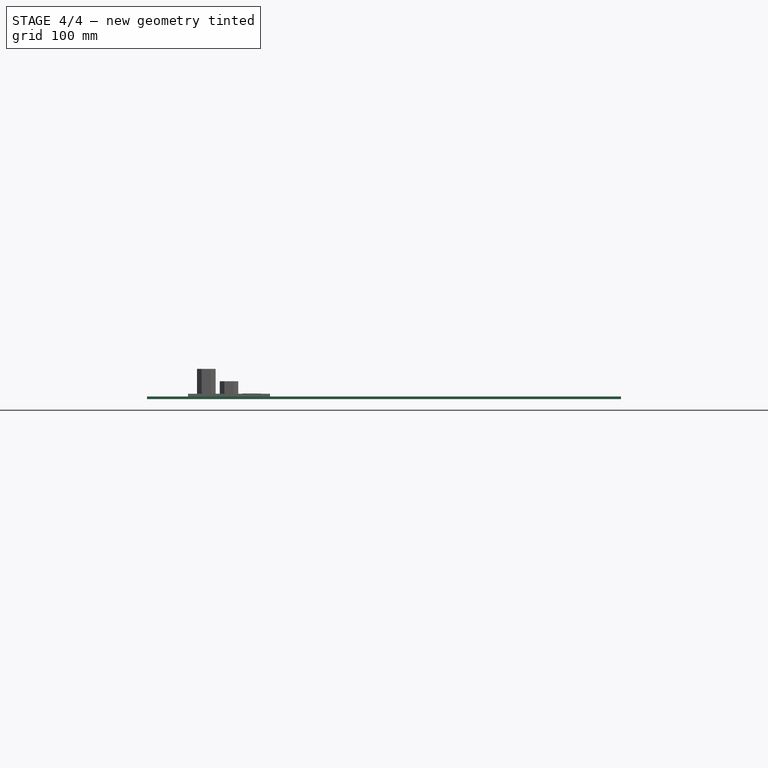
[diagram: stage 4 of 4 — front view after this stage's code; geometry added in this stage tinted green]
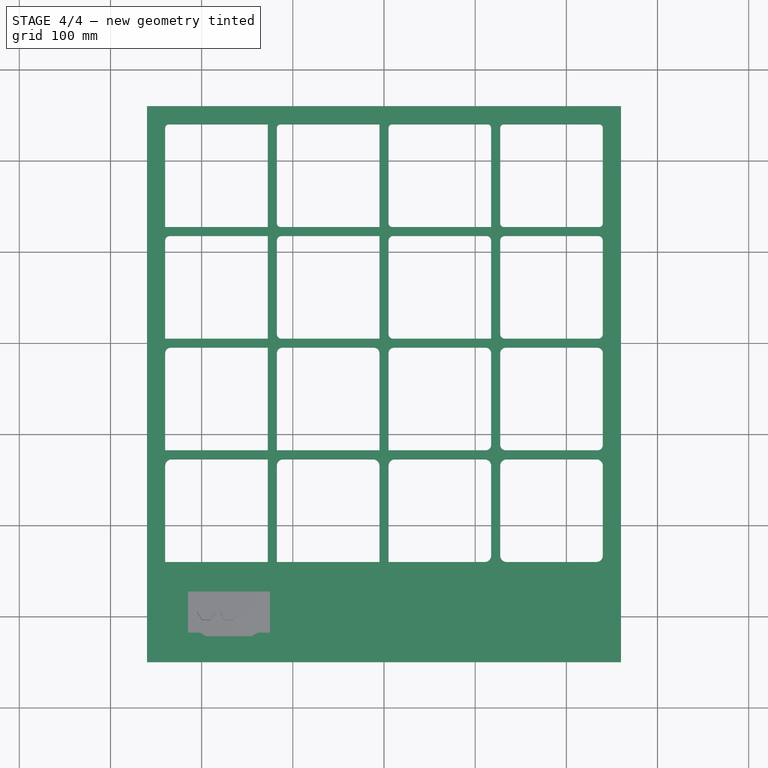
[diagram: stage 4 of 4 — top view after this stage's code; geometry added in this stage tinted green]
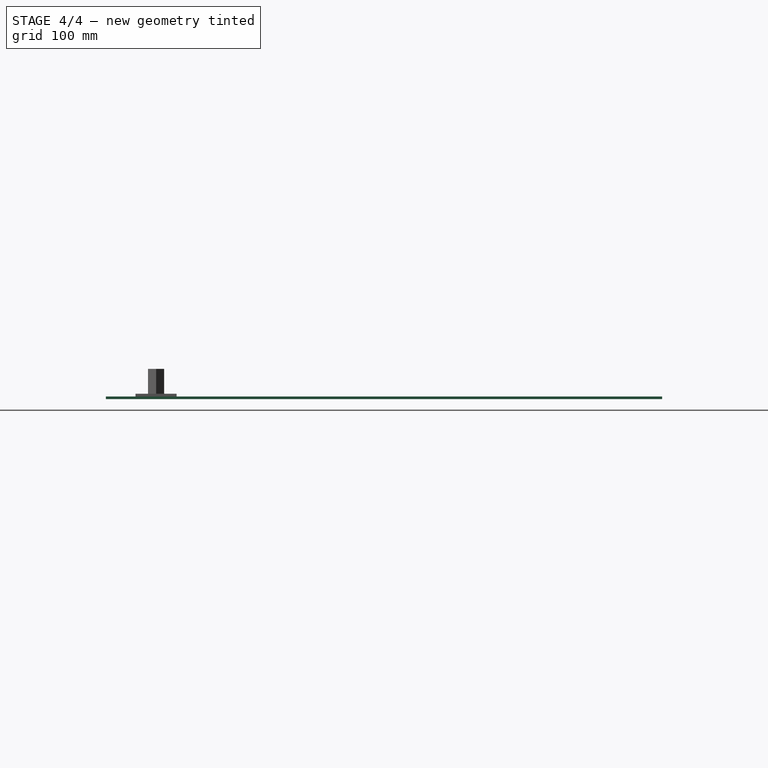
[diagram: stage 4 of 4 — right view after this stage's code; geometry added in this stage tinted green]
FEATURE [PartDesign::FeatureBase] BaseFeature002
  BaseFeature = -> Fusion
FEATURE [Sketcher::SketchObject] Sketch003
  ExternalGeometry = -> [BaseFeature002]
  MapMode = 5
  Placement = pos=(0,0,3) rot=(0,0,1;0rad)
  Support = -> [BaseFeature002]
  sketch-geometry (18):
    g0: LineSegment StartX=-194.903 StartY=-321.5 StartZ=0 EndX=-197.501 EndY=-326 EndZ=0
    g1: LineSegment StartX=-197.501 StartY=-326 StartZ=0 EndX=-192.305 EndY=-326 EndZ=0
    g2: LineSegment StartX=-192.305 StartY=-326 StartZ=0 EndX=-194.903 EndY=-321.5 EndZ=0
    g3: Circle [constr] CenterX=-194.903 CenterY=-324.5 CenterZ=0 NormalX=0 NormalY=0 NormalZ=1 AngleXU=0 Radius=3
    g4: LineSegment StartX=-169.998 StartY=-321.5 StartZ=0 EndX=-172.596 EndY=-326 EndZ=0
    g5: LineSegment StartX=-172.596 StartY=-326 StartZ=0 EndX=-167.4 EndY=-326 EndZ=0
    g6: LineSegment StartX=-167.4 StartY=-326 StartZ=0 EndX=-169.998 EndY=-321.5 EndZ=0
    g7: Circle [constr] CenterX=-169.998 CenterY=-324.5 CenterZ=0 NormalX=0 NormalY=0 NormalZ=1 AngleXU=0 Radius=3
    g8: LineSegment StartX=-145.093 StartY=-321.5 StartZ=0 EndX=-147.691 EndY=-326 EndZ=0
    g9: LineSegment StartX=-147.691 StartY=-326 StartZ=0 EndX=-142.495 EndY=-326 EndZ=0
    g10: LineSegment StartX=-142.495 StartY=-326 StartZ=0 EndX=-145.093 EndY=-321.5 EndZ=0
    g11: Circle [constr] CenterX=-145.093 CenterY=-324.5 CenterZ=0 NormalX=0 NormalY=0 NormalZ=1 AngleXU=0 Radius=3
    g12: LineSegment [constr] StartX=-199.997 StartY=-303.82 StartZ=0 EndX=-194.903 EndY=-321.5 EndZ=0
    g13: LineSegment [constr] StartX=-194.903 StartY=-321.5 StartZ=0 EndX=-189.81 EndY=-303.82 EndZ=0
    g14: LineSegment [constr] StartX=-175.092 StartY=-303.82 StartZ=0 EndX=-169.998 EndY=-321.5 EndZ=0
    g15: LineSegment [constr] StartX=-169.998 StartY=-321.5 StartZ=0 EndX=-164.905 EndY=-303.82 EndZ=0
    g16: LineSegment [constr] StartX=-150.187 StartY=-303.82 StartZ=0 EndX=-145.093 EndY=-321.5 EndZ=0
    g17: LineSegment [constr] StartX=-145.093 StartY=-321.5 StartZ=0 EndX=-140 EndY=-303.82 EndZ=0
  constraints (48):
    c: Coincident(g0,g1)
    c: Coincident(g1,g2)
    c: Coincident(g2,g0)
    c: Equal(g0,g1)
    c: Equal(g0,g2)
    c: PointOnObject(g0,g3)
    c: PointOnObject(g1,g3)
    c: PointOnObject(g2,g3)
    c: Coincident(g4,g5)
    c: Coincident(g5,g6)
    c: Coincident(g6,g4)
    c: Equal(g4,g5)
    c: Equal(g4,g6)
    c: PointOnObject(g4,g7)
    c: PointOnObject(g5,g7)
    c: PointOnObject(g6,g7)
    c: Coincident(g8,g9)
    c: Coincident(g9,g10)
    c: Coincident(g10,g8)
    c: Equal(g8,g9)
    c: Equal(g8,g10)
    c: PointOnObject(g8,g11)
    c: PointOnObject(g9,g11)
    c: PointOnObject(g10,g11)
    c: Horizontal(g1)
    c: Horizontal(g5)
    c: Horizontal(g9)
    c: Radius(g3) = 3
    c: Equal(g3,g7)
    c: Equal(g3,g11)
    c: DistanceY(g4,g1) = 0
    c: DistanceY(g5,g8) = 0
    c: Coincident(g-3,g12)
    c: Coincident(g12,g0)
    c: Coincident(g12,g13)
    c: Coincident(g13,g-3)
    c: Coincident(g-4,g14)
    c: Coincident(g14,g4)
    c: Coincident(g14,g15)
    c: Coincident(g15,g-4)
    c: Coincident(g-5,g16)
    c: Coincident(g16,g8)
    c: Coincident(g16,g17)
    c: Coincident(g17,g-5)
    c: Equal(g12,g13)
    c: Equal(g14,g15)
    c: Equal(g16,g17)
    c: DistanceY(g0,g-6) = 4
FEATURE [PartDesign::Body] Body002  label="Body003"
  BaseFeature = -> Fusion
  Group = -> [BaseFeature002,Sketch003]
  Origin = -> Origin002
  Tip = -> BaseFeature002
FEATURE [Part::Extrusion] Extrude001
  Base = -> Sketch003
  Dir = (0,0,-1)
  DirMode = 0
  FaceMakerClass = Part::FaceMakerBullseye
  LengthFwd = 4
  LengthRev = 0
  Solid = true
  Symmetric = false
FEATURE [Part::Cut] Cut
  Base = -> Body
  Tool = -> Extrude001
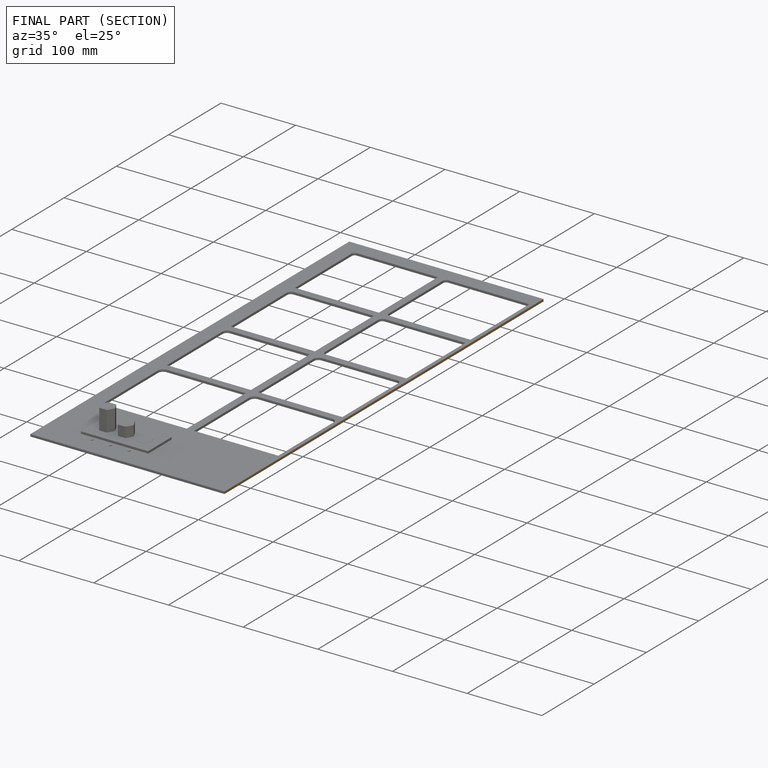
[diagram: finished part — half-section view (interior)]
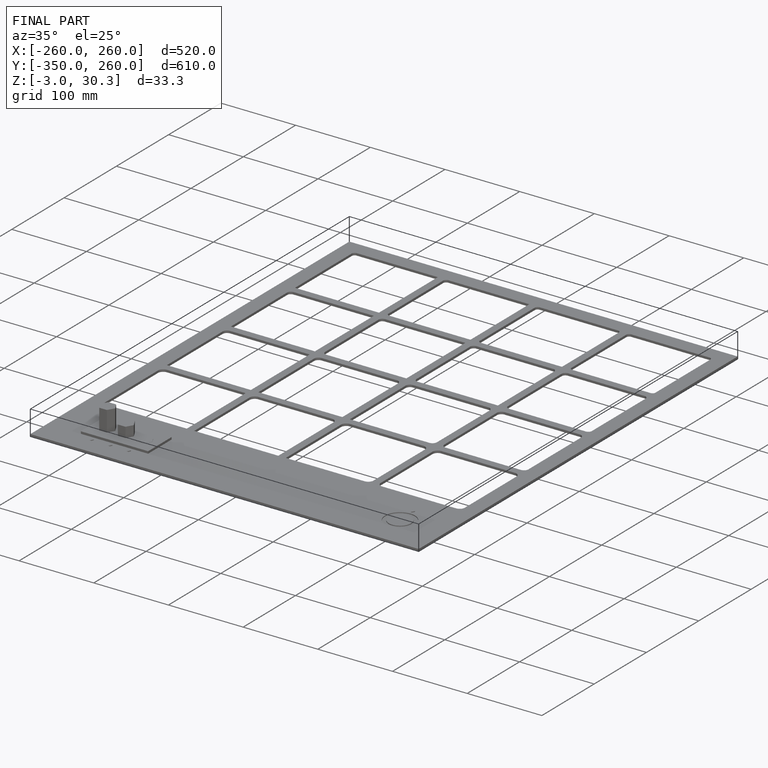
[diagram: finished part — iso view with bounding-box wireframe]
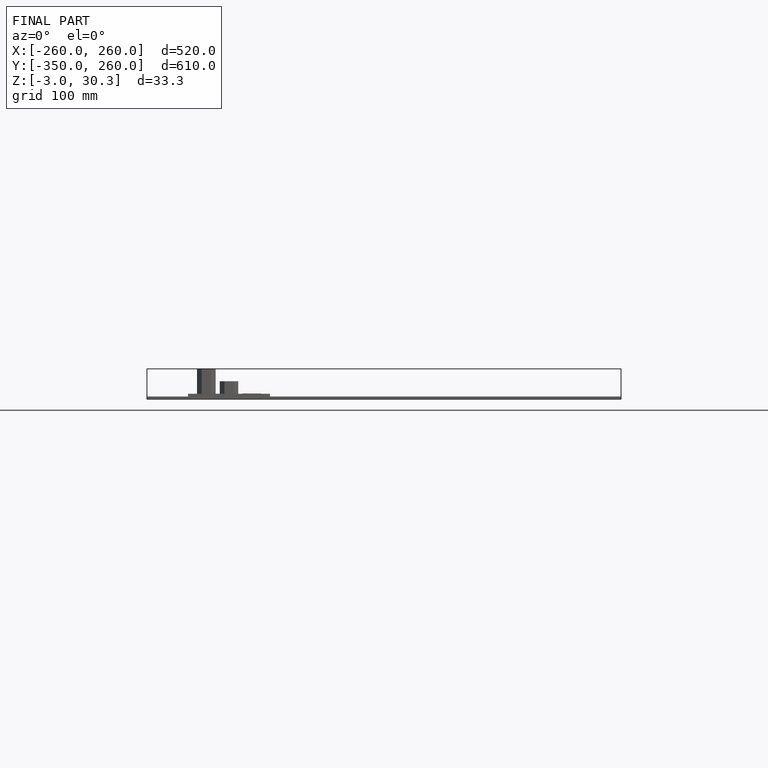
[diagram: finished part — front view with bounding-box wireframe]
